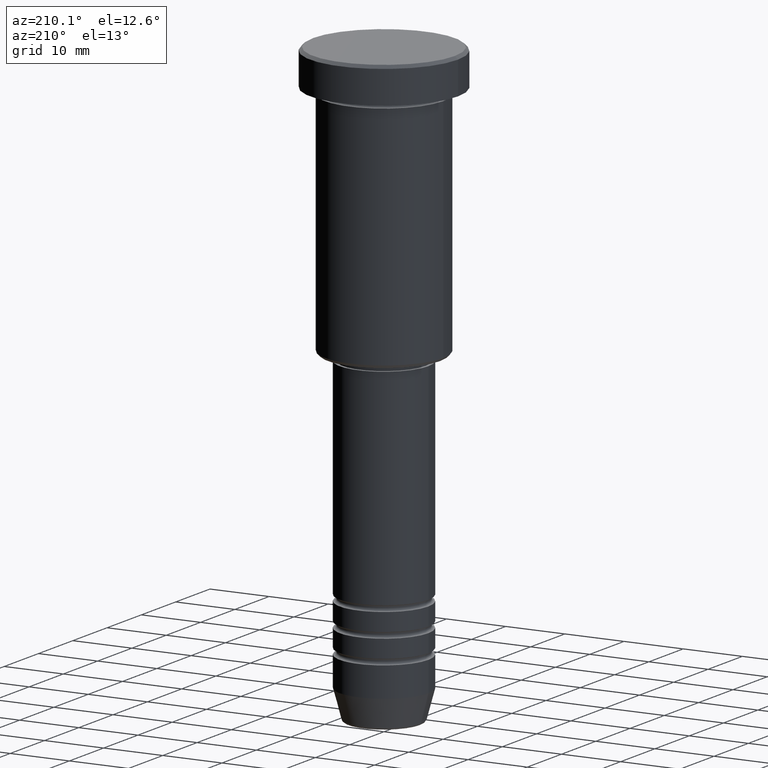
[diagram: clean part render]
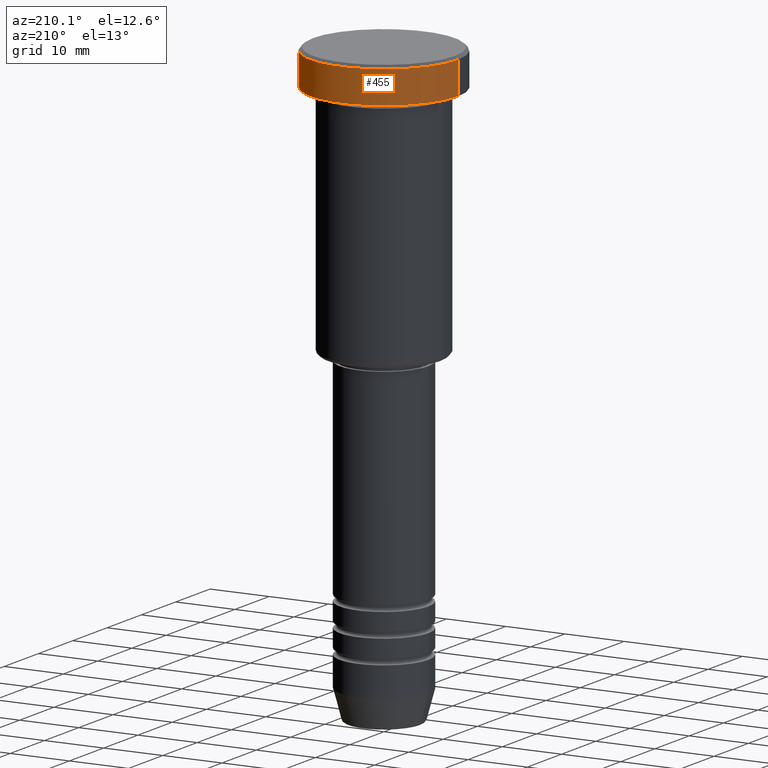
[diagram: same view with one face highlighted and labeled with its STEP entity id]
A machine part, auxiliary view. The second image highlights one B-rep face of the part: STEP entity #455.
In plain terms, the highlighted cylindrical surface (partial cylindrical patch) has radius 12.5 mm, axis along (-0, -0, 1).
Its self-contained STEP definition (entity closure, byte-faithful):
#26 = VERTEX_POINT ( 'NONE', #977 ) ;
#95 = DIRECTION ( 'NONE',  ( -0.000000000000000000, -0.000000000000000000, 1.000000000000000000 ) ) ;
#104 = CARTESIAN_POINT ( 'NONE',  ( -12.50000000000000000, 1.530808498934191521E-15, 0.000000000000000000 ) ) ;
#164 = CARTESIAN_POINT ( 'NONE',  ( 12.50000000000000000, 0.000000000000000000, 0.000000000000000000 ) ) ;
#188 = DIRECTION ( 'NONE',  ( 1.000000000000000000, 0.000000000000000000, 0.000000000000000000 ) ) ;
#204 = AXIS2_PLACEMENT_3D ( 'NONE', #946, #95, #188 ) ;
#228 = VERTEX_POINT ( 'NONE', #779 ) ;
#254 = DIRECTION ( 'NONE',  ( 1.000000000000000000, 0.000000000000000000, 0.000000000000000000 ) ) ;
#265 = VERTEX_POINT ( 'NONE', #427 ) ;
#344 = DIRECTION ( 'NONE',  ( 0.000000000000000000, 0.000000000000000000, -1.000000000000000000 ) ) ;
#381 = LINE ( 'NONE', #104, #639 ) ;
#427 = CARTESIAN_POINT ( 'NONE',  ( 12.50000000000000000, 0.000000000000000000, -5.999999999999996447 ) ) ;
#455 = ADVANCED_FACE ( 'NONE', ( #780 ), #773, .T. ) ;
#529 = EDGE_LOOP ( 'NONE', ( #588, #997, #864, #1026 ) ) ;
#575 = EDGE_CURVE ( 'NONE', #228, #1053, #381, .T. ) ;
#588 = ORIENTED_EDGE ( 'NONE', *, *, #995, .T. ) ;
#639 = VECTOR ( 'NONE', #1100, 1000.000000000000000 ) ;
#646 = CIRCLE ( 'NONE', #778, 12.50000000000000000 ) ;
#648 = CIRCLE ( 'NONE', #941, 12.50000000000000000 ) ;
#689 = EDGE_CURVE ( 'NONE', #265, #26, #720, .T. ) ;
#698 = DIRECTION ( 'NONE',  ( 1.000000000000000000, 0.000000000000000000, 0.000000000000000000 ) ) ;
#709 = EDGE_CURVE ( 'NONE', #1053, #26, #646, .T. ) ;
#720 = LINE ( 'NONE', #164, #966 ) ;
#773 = CYLINDRICAL_SURFACE ( 'NONE', #204, 12.50000000000000000 ) ;
#778 = AXIS2_PLACEMENT_3D ( 'NONE', #1071, #344, #254 ) ;
#779 = CARTESIAN_POINT ( 'NONE',  ( -12.50000000000000000, 1.530808498934191521E-15, -5.999999999999996447 ) ) ;
#780 = FACE_OUTER_BOUND ( 'NONE', #529, .T. ) ;
#792 = DIRECTION ( 'NONE',  ( -0.000000000000000000, -0.000000000000000000, 1.000000000000000000 ) ) ;
#864 = ORIENTED_EDGE ( 'NONE', *, *, #709, .T. ) ;
#941 = AXIS2_PLACEMENT_3D ( 'NONE', #1127, #792, #698 ) ;
#946 = CARTESIAN_POINT ( 'NONE',  ( 0.000000000000000000, 0.000000000000000000, 0.000000000000000000 ) ) ;
#966 = VECTOR ( 'NONE', #1066, 1000.000000000000000 ) ;
#977 = CARTESIAN_POINT ( 'NONE',  ( 12.50000000000000000, 0.000000000000000000, -0.5000000000000056621 ) ) ;
#995 = EDGE_CURVE ( 'NONE', #265, #228, #648, .T. ) ;
#997 = ORIENTED_EDGE ( 'NONE', *, *, #575, .T. ) ;
#1026 = ORIENTED_EDGE ( 'NONE', *, *, #689, .F. ) ;
#1053 = VERTEX_POINT ( 'NONE', #1166 ) ;
#1066 = DIRECTION ( 'NONE',  ( -0.000000000000000000, -0.000000000000000000, 1.000000000000000000 ) ) ;
#1071 = CARTESIAN_POINT ( 'NONE',  ( 0.000000000000000000, 0.000000000000000000, -0.5000000000000056621 ) ) ;
#1100 = DIRECTION ( 'NONE',  ( -0.000000000000000000, -0.000000000000000000, 1.000000000000000000 ) ) ;
#1127 = CARTESIAN_POINT ( 'NONE',  ( 0.000000000000000000, 0.000000000000000000, -5.999999999999996447 ) ) ;
#1166 = CARTESIAN_POINT ( 'NONE',  ( -12.50000000000000000, 1.530808498934191521E-15, -0.5000000000000056621 ) ) ;